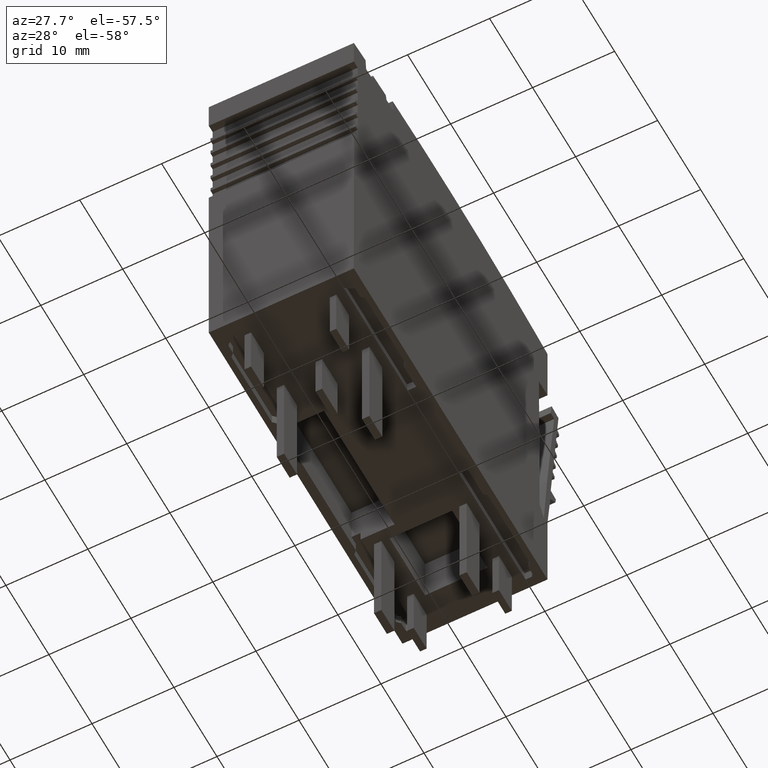
[diagram: clean part render]
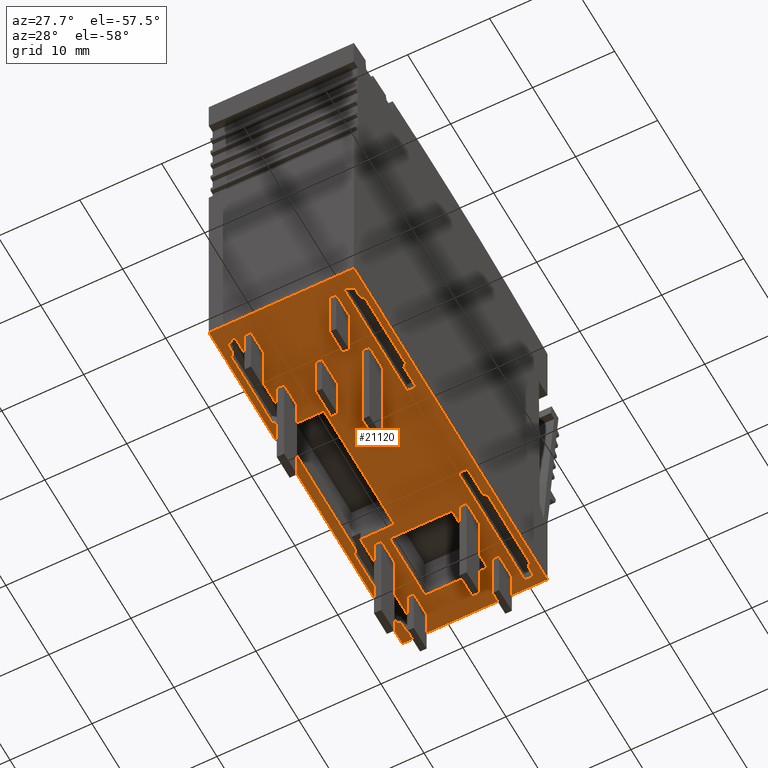
[diagram: same view with one face highlighted and labeled with its STEP entity id]
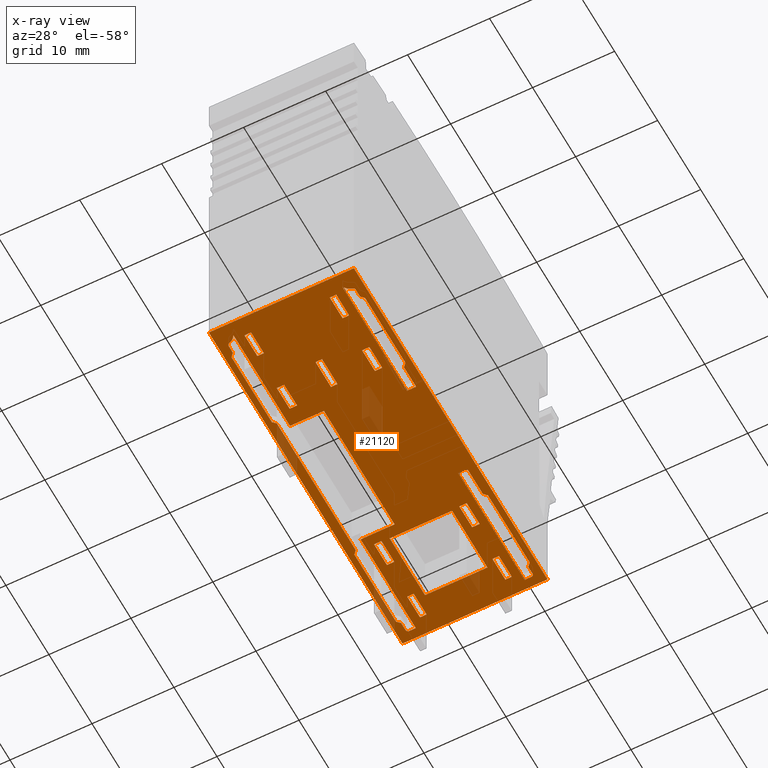
[diagram: x-ray of the same camera — body ghosted, the highlighted face saturated]
A machine part, auxiliary view. The second image highlights one B-rep face of the part: STEP entity #21120.
The next image is the same camera in x-ray: the body ghosted, the highlighted face saturated — about 4% of this face is hidden behind the body in this view.
In plain terms, the highlighted planar face has unit normal (0, -0, 1).
Its self-contained STEP definition (entity closure, byte-faithful):
#5840=CARTESIAN_POINT('',(166.676054836298,56.4590821833395,
6.5554859236643));
#5850=VERTEX_POINT('',#5840);
#5880=CARTESIAN_POINT('',(111.236365997237,56.4590821833395,
6.55548592610147));
#5890=DIRECTION('',(-1.,-1.71945223954659E-26,4.39608349722675E-11));
#5900=VECTOR('',#5890,1.);
#5910=LINE('',#5880,#5900);
#5920=CARTESIAN_POINT('',(121.676054887351,56.4590821833395,
6.55548592564253));
#5930=VERTEX_POINT('',#5920);
#5940=EDGE_CURVE('',#5850,#5930,#5910,.T.);
#14040=CARTESIAN_POINT('',(121.676054886573,56.4590821833395,
-11.144514076686));
#14050=VERTEX_POINT('',#14040);
#14080=CARTESIAN_POINT('',(111.236365997237,56.4590821833395,
-11.144514076686));
#14090=DIRECTION('',(1.,1.84143408459452E-26,-1.50463276905253E-36));
#14100=VECTOR('',#14090,1.);
#14110=LINE('',#14080,#14100);
#14120=CARTESIAN_POINT('',(166.67605483552,56.4590821833395,
-11.144514076686));
#14130=VERTEX_POINT('',#14120);
#14140=EDGE_CURVE('',#14050,#14130,#14110,.T.);
#14390=CARTESIAN_POINT('',(121.676055134106,56.4590821833395,
-4.29451407564581));
#14400=DIRECTION('',(4.39608349722675E-11,2.77478453548207E-17,1.));
#14410=VECTOR('',#14400,1.);
#14420=LINE('',#14390,#14410);
#14430=EDGE_CURVE('',#14050,#5930,#14420,.T.);
#14560=CARTESIAN_POINT('',(165.96306108922,56.4590821833395,
-3.388679999585));
#14570=DIRECTION('',(-1.84143408459452E-26,1.,-2.77478453548207E-17));
#14580=DIRECTION('',(1.,1.84143408459452E-26,-1.50463276905253E-36));
#14590=AXIS2_PLACEMENT_3D('',#14560,#14570,#14580);
#14600=PLANE('',#14590);
#14610=CARTESIAN_POINT('',(111.236365997237,56.4590821833322,
2.50548593117958));
#14620=DIRECTION('',(1.,3.70165795254377E-23,4.39608349722675E-11));
#14630=VECTOR('',#14620,1.);
#14640=LINE('',#14610,#14630);
#14650=CARTESIAN_POINT('',(161.576089848597,56.4590821833395,
2.50548593339255));
#14660=VERTEX_POINT('',#14650);
#14670=CARTESIAN_POINT('',(164.576089848597,56.4590821833395,
2.50548593352443));
#14680=VERTEX_POINT('',#14670);
#14690=EDGE_CURVE('',#14660,#14680,#14640,.T.);
#14700=ORIENTED_EDGE('',*,*,#14690,.F.);
#14710=CARTESIAN_POINT('',(164.576089848597,56.4590821833322,
-4.29451407564581));
#14720=DIRECTION('',(1.50463276905253E-36,2.77478453548207E-17,1.));
#14730=VECTOR('',#14720,1.);
#14740=LINE('',#14710,#14730);
#14750=CARTESIAN_POINT('',(164.576089848597,56.4590821833395,
3.3054859331771));
#14760=VERTEX_POINT('',#14750);
#14770=EDGE_CURVE('',#14680,#14760,#14740,.T.);
#14780=ORIENTED_EDGE('',*,*,#14770,.F.);
#14790=CARTESIAN_POINT('',(111.236365997237,56.4590821833322,
3.30548593134567));
#14800=DIRECTION('',(-1.,-3.70165795254377E-23,-4.39608349722675E-11));
#14810=VECTOR('',#14800,1.);
#14820=LINE('',#14790,#14810);
#14830=CARTESIAN_POINT('',(161.576089848597,56.4590821833395,
3.30548593355864));
#14840=VERTEX_POINT('',#14830);
#14850=EDGE_CURVE('',#14760,#14840,#14820,.T.);
#14860=ORIENTED_EDGE('',*,*,#14850,.F.);
#14870=CARTESIAN_POINT('',(161.576089848597,56.4590821833322,
-4.29451407564581));
#14880=DIRECTION('',(1.50463276905253E-36,2.77478453548207E-17,1.));
#14890=VECTOR('',#14880,1.);
#14900=LINE('',#14870,#14890);
#14910=EDGE_CURVE('',#14660,#14840,#14900,.T.);
#14920=ORIENTED_EDGE('',*,*,#14910,.T.);
#14930=EDGE_LOOP('',(#14920,#14860,#14780,#14700));
#14940=FACE_BOUND('',#14930,.T.);
#14950=CARTESIAN_POINT('',(111.236365997237,56.4590821833322,
-7.09451406775059));
#14960=DIRECTION('',(-1.,-3.70165795254377E-23,-4.39608349722675E-11));
#14970=VECTOR('',#14960,1.);
#14980=LINE('',#14950,#14970);
#14990=CARTESIAN_POINT('',(164.576089848535,56.4590821833395,
-7.09451406540574));
#15000=VERTEX_POINT('',#14990);
#15010=CARTESIAN_POINT('',(161.576089848535,56.4590821833395,
-7.09451406553762));
#15020=VERTEX_POINT('',#15010);
#15030=EDGE_CURVE('',#15000,#15020,#14980,.T.);
#15040=ORIENTED_EDGE('',*,*,#15030,.F.);
#15050=CARTESIAN_POINT('',(161.576089848535,56.4590821833322,
-4.29451407564581));
#15060=DIRECTION('',(1.50463276905253E-36,2.77478453548207E-17,1.));
#15070=VECTOR('',#15060,1.);
#15080=LINE('',#15050,#15070);
#15090=CARTESIAN_POINT('',(161.576089848535,56.4590821833395,
-7.89451406570371));
#15100=VERTEX_POINT('',#15090);
#15110=EDGE_CURVE('',#15100,#15020,#15080,.T.);
#15120=ORIENTED_EDGE('',*,*,#15110,.T.);
#15130=CARTESIAN_POINT('',(111.236365997237,56.4590821833322,
-7.89451406791668));
#15140=DIRECTION('',(1.,3.70165795254377E-23,4.39608349722675E-11));
#15150=VECTOR('',#15140,1.);
#15160=LINE('',#15130,#15150);
#15170=CARTESIAN_POINT('',(164.576089848535,56.4590821833395,
-7.89451406557183));
#15180=VERTEX_POINT('',#15170);
#15190=EDGE_CURVE('',#15100,#15180,#15160,.T.);
#15200=ORIENTED_EDGE('',*,*,#15190,.F.);
#15210=CARTESIAN_POINT('',(164.576089848535,56.4590821833322,
-4.29451407564581));
#15220=DIRECTION('',(1.50463276905253E-36,2.77478453548207E-17,1.));
#15230=VECTOR('',#15220,1.);
#15240=LINE('',#15210,#15230);
#15250=EDGE_CURVE('',#15180,#15000,#15240,.T.);
#15260=ORIENTED_EDGE('',*,*,#15250,.F.);
#15270=EDGE_LOOP('',(#15260,#15200,#15120,#15040));
#15280=FACE_BOUND('',#15270,.T.);
#15290=CARTESIAN_POINT('',(134.376201024909,56.4590821833395,
4.50548593001326));
#15300=DIRECTION('',(-1.50463276905253E-36,-2.77478453548207E-17,-1.));
#15310=VECTOR('',#15300,1.);
#15320=LINE('',#15290,#15310);
#15330=CARTESIAN_POINT('',(134.376201024909,56.4590821833395,
3.35548592914977));
#15340=VERTEX_POINT('',#15330);
#15350=CARTESIAN_POINT('',(134.376201024909,56.4590821833395,
2.45548592939735));
#15360=VERTEX_POINT('',#15350);
#15370=EDGE_CURVE('',#15340,#15360,#15320,.T.);
#15380=ORIENTED_EDGE('',*,*,#15370,.T.);
#15390=CARTESIAN_POINT('',(96.2363660492219,56.4590821833395,
3.35548592914977));
#15400=DIRECTION('',(1.,1.81672225352878E-26,-1.50463276905253E-36));
#15410=VECTOR('',#15400,1.);
#15420=LINE('',#15390,#15410);
#15430=CARTESIAN_POINT('',(131.375691708002,56.4590821833395,
3.35548592914977));
#15440=VERTEX_POINT('',#15430);
#15450=EDGE_CURVE('',#15440,#15340,#15420,.T.);
#15460=ORIENTED_EDGE('',*,*,#15450,.T.);
#15470=CARTESIAN_POINT('',(131.375691708002,56.4590821833395,
4.50548592988136));
#15480=DIRECTION('',(1.50463276905253E-36,2.77478453548207E-17,1.));
#15490=VECTOR('',#15480,1.);
#15500=LINE('',#15470,#15490);
#15510=CARTESIAN_POINT('',(131.375691708002,56.4590821833395,
2.45548592939735));
#15520=VERTEX_POINT('',#15510);
#15530=EDGE_CURVE('',#15520,#15440,#15500,.T.);
#15540=ORIENTED_EDGE('',*,*,#15530,.T.);
#15550=CARTESIAN_POINT('',(96.2363660492615,56.4590821833395,
2.45548592939735));
#15560=DIRECTION('',(-1.,-1.81672225352878E-26,1.50463276905253E-36));
#15570=VECTOR('',#15560,1.);
#15580=LINE('',#15550,#15570);
#15590=EDGE_CURVE('',#15360,#15520,#15580,.T.);
#15600=ORIENTED_EDGE('',*,*,#15590,.T.);
#15610=EDGE_LOOP('',(#15600,#15540,#15460,#15380));
#15620=FACE_BOUND('',#15610,.T.);
#15630=CARTESIAN_POINT('',(134.375691706241,56.4590821833395,
4.50548593001324));
#15640=DIRECTION('',(-1.50463276905253E-36,-2.77478453548207E-17,-1.));
#15650=VECTOR('',#15640,1.);
#15660=LINE('',#15630,#15650);
#15670=CARTESIAN_POINT('',(134.375691706241,56.4590821833395,
-7.04451406646506));
#15680=VERTEX_POINT('',#15670);
#15690=CARTESIAN_POINT('',(134.375691706241,56.4590821833395,
-7.94451406621747));
#15700=VERTEX_POINT('',#15690);
#15710=EDGE_CURVE('',#15680,#15700,#15660,.T.);
#15720=ORIENTED_EDGE('',*,*,#15710,.T.);
#15730=CARTESIAN_POINT('',(96.2363660496791,56.4590821833395,
-7.04451406646506));
#15740=DIRECTION('',(1.,1.81672225352878E-26,-1.50463276905253E-36));
#15750=VECTOR('',#15740,1.);
#15760=LINE('',#15730,#15750);
#15770=CARTESIAN_POINT('',(131.375691707998,56.4590821833395,
-7.04451406646507));
#15780=VERTEX_POINT('',#15770);
#15790=EDGE_CURVE('',#15780,#15680,#15760,.T.);
#15800=ORIENTED_EDGE('',*,*,#15790,.T.);
#15810=CARTESIAN_POINT('',(131.375691707998,56.4590821833395,
4.50548592988136));
#15820=DIRECTION('',(1.50463276905253E-36,2.77478453548207E-17,1.));
#15830=VECTOR('',#15820,1.);
#15840=LINE('',#15810,#15830);
#15850=CARTESIAN_POINT('',(131.375691707998,56.4590821833395,
-7.94451406621747));
#15860=VERTEX_POINT('',#15850);
#15870=EDGE_CURVE('',#15860,#15780,#15840,.T.);
#15880=ORIENTED_EDGE('',*,*,#15870,.T.);
#15890=CARTESIAN_POINT('',(96.2363660497187,56.4590821833395,
-7.94451406621747));
#15900=DIRECTION('',(-1.,-1.81672225352878E-26,1.50463276905253E-36));
#15910=VECTOR('',#15900,1.);
#15920=LINE('',#15890,#15910);
#15930=EDGE_CURVE('',#15700,#15860,#15920,.T.);
#15940=ORIENTED_EDGE('',*,*,#15930,.T.);
#15950=EDGE_LOOP('',(#15940,#15880,#15800,#15720));
#15960=FACE_BOUND('',#15950,.T.);
#15970=CARTESIAN_POINT('',(96.2363660492219,56.4590821833395,
3.35548592815622));
#15980=DIRECTION('',(1.,1.81672225352878E-26,-1.50463276905253E-36));
#15990=VECTOR('',#15980,1.);
#16000=LINE('',#15970,#15990);
#16010=CARTESIAN_POINT('',(153.976442649102,56.4590821833395,
3.35548592815622));
#16020=VERTEX_POINT('',#16010);
#16030=CARTESIAN_POINT('',(156.976442647798,56.4590821833395,
3.35548592815622));
#16040=VERTEX_POINT('',#16030);
#16050=EDGE_CURVE('',#16020,#16040,#16000,.T.);
#16060=ORIENTED_EDGE('',*,*,#16050,.T.);
#16070=CARTESIAN_POINT('',(153.976442649102,56.4590821833395,
4.50548593087491));
#16080=DIRECTION('',(1.50463276905253E-36,2.77478453548207E-17,1.));
#16090=VECTOR('',#16080,1.);
#16100=LINE('',#16070,#16090);
#16110=CARTESIAN_POINT('',(153.976442649102,56.4590821833395,
2.45548592840383));
#16120=VERTEX_POINT('',#16110);
#16130=EDGE_CURVE('',#16120,#16020,#16100,.T.);
#16140=ORIENTED_EDGE('',*,*,#16130,.T.);
#16150=CARTESIAN_POINT('',(96.2363660492615,56.4590821833395,
2.45548592840383));
#16160=DIRECTION('',(-1.,-1.81672225352878E-26,1.50463276905253E-36));
#16170=VECTOR('',#16160,1.);
#16180=LINE('',#16150,#16170);
#16190=CARTESIAN_POINT('',(156.976442647798,56.4590821833395,
2.45548592840383));
#16200=VERTEX_POINT('',#16190);
#16210=EDGE_CURVE('',#16200,#16120,#16180,.T.);
#16220=ORIENTED_EDGE('',*,*,#16210,.T.);
#16230=CARTESIAN_POINT('',(156.976442647798,56.4590821833395,
4.50548593100679));
#16240=DIRECTION('',(-1.50463276905253E-36,-2.77478453548207E-17,-1.));
#16250=VECTOR('',#16240,1.);
#16260=LINE('',#16230,#16250);
#16270=EDGE_CURVE('',#16040,#16200,#16260,.T.);
#16280=ORIENTED_EDGE('',*,*,#16270,.T.);
#16290=EDGE_LOOP('',(#16280,#16220,#16140,#16060));
#16300=FACE_BOUND('',#16290,.T.);
#16310=CARTESIAN_POINT('',(96.2363660496791,56.4590821833395,
-7.04451406745861));
#16320=DIRECTION('',(1.,1.81672225352878E-26,-1.50463276905253E-36));
#16330=VECTOR('',#16320,1.);
#16340=LINE('',#16310,#16330);
#16350=CARTESIAN_POINT('',(153.976442648636,56.4590821833395,
-7.04451406745861));
#16360=VERTEX_POINT('',#16350);
#16370=CARTESIAN_POINT('',(156.976442647341,56.4590821833395,
-7.04451406745861));
#16380=VERTEX_POINT('',#16370);
#16390=EDGE_CURVE('',#16360,#16380,#16340,.T.);
#16400=ORIENTED_EDGE('',*,*,#16390,.T.);
#16410=CARTESIAN_POINT('',(153.976442648636,56.4590821833395,
4.50548593087491));
#16420=DIRECTION('',(1.50463276905253E-36,2.77478453548207E-17,1.));
#16430=VECTOR('',#16420,1.);
#16440=LINE('',#16410,#16430);
#16450=CARTESIAN_POINT('',(153.976442648636,56.4590821833395,
-7.94451406721101));
#16460=VERTEX_POINT('',#16450);
#16470=EDGE_CURVE('',#16460,#16360,#16440,.T.);
#16480=ORIENTED_EDGE('',*,*,#16470,.T.);
#16490=CARTESIAN_POINT('',(96.2363660497187,56.4590821833395,
-7.94451406721101));
#16500=DIRECTION('',(-1.,-1.81672225352878E-26,1.50463276905253E-36));
#16510=VECTOR('',#16500,1.);
#16520=LINE('',#16490,#16510);
#16530=CARTESIAN_POINT('',(156.976442647341,56.4590821833395,
-7.94451406721101));
#16540=VERTEX_POINT('',#16530);
#16550=EDGE_CURVE('',#16540,#16460,#16520,.T.);
#16560=ORIENTED_EDGE('',*,*,#16550,.T.);
#16570=CARTESIAN_POINT('',(156.976442647341,56.4590821833395,
4.50548593100679));
#16580=DIRECTION('',(-1.50463276905253E-36,-2.77478453548207E-17,-1.));
#16590=VECTOR('',#16580,1.);
#16600=LINE('',#16570,#16590);
#16610=EDGE_CURVE('',#16380,#16540,#16600,.T.);
#16620=ORIENTED_EDGE('',*,*,#16610,.T.);
#16630=EDGE_LOOP('',(#16620,#16560,#16480,#16400));
#16640=FACE_BOUND('',#16630,.T.);
#16650=CARTESIAN_POINT('',(111.236365997237,56.4590821833395,
-6.09924445797375));
#16660=DIRECTION('',(1.,1.84143408459452E-26,-1.50463276905253E-36));
#16670=VECTOR('',#16660,1.);
#16680=LINE('',#16650,#16670);
#16690=CARTESIAN_POINT('',(126.044359175953,56.4590821833395,
-6.09924445797375));
#16700=VERTEX_POINT('',#16690);
#16710=CARTESIAN_POINT('',(134.253819951964,56.4590821833395,
-6.09924445797375));
#16720=VERTEX_POINT('',#16710);
#16730=EDGE_CURVE('',#16700,#16720,#16680,.T.);
#16740=ORIENTED_EDGE('',*,*,#16730,.F.);
#16750=CARTESIAN_POINT('',(134.253819951964,56.4590821833395,
-4.29451407564581));
#16760=DIRECTION('',(1.50463276905253E-36,2.77478453548207E-17,1.));
#16770=VECTOR('',#16760,1.);
#16780=LINE('',#16750,#16770);
#16790=CARTESIAN_POINT('',(134.253819951964,56.4590821833395,
1.5102163175957));
#16800=VERTEX_POINT('',#16790);
#16810=EDGE_CURVE('',#16720,#16800,#16780,.T.);
#16820=ORIENTED_EDGE('',*,*,#16810,.F.);
#16830=CARTESIAN_POINT('',(111.236365997237,56.4590821833395,
1.5102163175957));
#16840=DIRECTION('',(-1.,-1.84143408459452E-26,1.50463276905253E-36));
#16850=VECTOR('',#16840,1.);
#16860=LINE('',#16830,#16850);
#16870=CARTESIAN_POINT('',(126.044359175953,56.4590821833395,
1.5102163175957));
#16880=VERTEX_POINT('',#16870);
#16890=EDGE_CURVE('',#16800,#16880,#16860,.T.);
#16900=ORIENTED_EDGE('',*,*,#16890,.F.);
#16910=CARTESIAN_POINT('',(126.044359175953,56.4590821833395,
-4.29451407564581));
#16920=DIRECTION('',(-1.50463276905253E-36,-2.77478453548207E-17,-1.));
#16930=VECTOR('',#16920,1.);
#16940=LINE('',#16910,#16930);
#16950=EDGE_CURVE('',#16880,#16700,#16940,.T.);
#16960=ORIENTED_EDGE('',*,*,#16950,.F.);
#16970=EDGE_LOOP('',(#16960,#16900,#16820,#16740));
#16980=FACE_BOUND('',#16970,.T.);
#16990=CARTESIAN_POINT('',(111.236365997237,56.4590821833322,
-2.69451404888911));
#17000=DIRECTION('',(1.,3.70165795254377E-23,4.39608349722675E-11));
#17010=VECTOR('',#17000,1.);
#17020=LINE('',#16990,#17010);
#17030=CARTESIAN_POINT('',(154.376054932654,56.4590821833395,
-2.69451404699265));
#17040=VERTEX_POINT('',#17030);
#17050=CARTESIAN_POINT('',(157.976054932774,56.4590821833395,
-2.69451404683439));
#17060=VERTEX_POINT('',#17050);
#17070=EDGE_CURVE('',#17040,#17060,#17020,.T.);
#17080=ORIENTED_EDGE('',*,*,#17070,.F.);
#17090=CARTESIAN_POINT('',(157.976054932774,56.4590821833322,
-4.29451407564581));
#17100=DIRECTION('',(1.50463276905253E-36,2.77478453548207E-17,1.));
#17110=VECTOR('',#17100,1.);
#17120=LINE('',#17090,#17110);
#17130=CARTESIAN_POINT('',(157.976054932774,56.4590821833395,
-1.8945140466683));
#17140=VERTEX_POINT('',#17130);
#17150=EDGE_CURVE('',#17060,#17140,#17120,.T.);
#17160=ORIENTED_EDGE('',*,*,#17150,.F.);
#17170=CARTESIAN_POINT('',(111.236365997237,56.4590821833322,
-1.89451404872302));
#17180=DIRECTION('',(-1.,-3.70165795254377E-23,-4.39608349722675E-11));
#17190=VECTOR('',#17180,1.);
#17200=LINE('',#17170,#17190);
#17210=CARTESIAN_POINT('',(154.376054932654,56.4590821833395,
-1.89451404682656));
#17220=VERTEX_POINT('',#17210);
#17230=EDGE_CURVE('',#17140,#17220,#17200,.T.);
#17240=ORIENTED_EDGE('',*,*,#17230,.F.);
#17250=CARTESIAN_POINT('',(154.376054932654,56.4590821833322,
-4.29451407564581));
#17260=DIRECTION('',(1.50463276905253E-36,2.77478453548207E-17,1.));
#17270=VECTOR('',#17260,1.);
#17280=LINE('',#17250,#17270);
#17290=EDGE_CURVE('',#17040,#17220,#17280,.T.);
#17300=ORIENTED_EDGE('',*,*,#17290,.T.);
#17310=EDGE_LOOP('',(#17300,#17240,#17160,#17080));
#17320=FACE_BOUND('',#17310,.T.);
#17330=CARTESIAN_POINT('',(111.236365997237,56.4590821833322,
-7.89451406563886));
#17340=DIRECTION('',(1.,3.70165795254377E-23,4.39608349722675E-11));
#17350=VECTOR('',#17340,1.);
#17360=LINE('',#17330,#17350);
#17370=CARTESIAN_POINT('',(123.776089815191,56.4590821833395,
-7.8945140650876));
#17380=VERTEX_POINT('',#17370);
#17390=CARTESIAN_POINT('',(126.776089815191,56.4590821833395,
-7.89451406495572));
#17400=VERTEX_POINT('',#17390);
#17410=EDGE_CURVE('',#17380,#17400,#17360,.T.);
#17420=ORIENTED_EDGE('',*,*,#17410,.F.);
#17430=CARTESIAN_POINT('',(126.776089815191,56.4590821833322,
-4.29451407564581));
#17440=DIRECTION('',(1.50463276905253E-36,2.77478453548207E-17,1.));
#17450=VECTOR('',#17440,1.);
#17460=LINE('',#17430,#17450);
#17470=CARTESIAN_POINT('',(126.776089815191,56.4590821833395,
-7.09451406478963));
#17480=VERTEX_POINT('',#17470);
#17490=EDGE_CURVE('',#17400,#17480,#17460,.T.);
#17500=ORIENTED_EDGE('',*,*,#17490,.F.);
#17510=CARTESIAN_POINT('',(111.236365997237,56.4590821833322,
-7.09451406547277));
#17520=DIRECTION('',(-1.,-3.70165795254377E-23,-4.39608349722675E-11));
#17530=VECTOR('',#17520,1.);
#17540=LINE('',#17510,#17530);
#17550=CARTESIAN_POINT('',(123.776089815191,56.4590821833395,
-7.09451406492151));
#17560=VERTEX_POINT('',#17550);
#17570=EDGE_CURVE('',#17480,#17560,#17540,.T.);
#17580=ORIENTED_EDGE('',*,*,#17570,.F.);
#17590=CARTESIAN_POINT('',(123.776089815191,56.4590821833322,
-4.29451407564581));
#17600=DIRECTION('',(1.50463276905253E-36,2.77478453548207E-17,1.));
#17610=VECTOR('',#17600,1.);
#17620=LINE('',#17590,#17610);
#17630=EDGE_CURVE('',#17380,#17560,#17620,.T.);
#17640=ORIENTED_EDGE('',*,*,#17630,.T.);
#17650=EDGE_LOOP('',(#17640,#17580,#17500,#17420));
#17660=FACE_BOUND('',#17650,.T.);
#17670=CARTESIAN_POINT('',(144.349607344526,56.4590821833395,
-4.29451407564581));
#17680=DIRECTION('',(-0.707106781155467,1.96206896015509E-17,
0.707106781217628));
#17690=VECTOR('',#17680,1.);
#17700=LINE('',#17670,#17690);
#17710=CARTESIAN_POINT('',(134.599607343389,56.4590821833395,
5.45548592634752));
#17720=VERTEX_POINT('',#17710);
#17730=CARTESIAN_POINT('',(134.199607285093,56.4590821833395,
5.85548598467952));
#17740=VERTEX_POINT('',#17730);
#17750=EDGE_CURVE('',#17720,#17740,#17700,.T.);
#17760=ORIENTED_EDGE('',*,*,#17750,.F.);
#17770=CARTESIAN_POINT('',(111.236365997237,56.4590821833395,
5.855485985689));
#17780=DIRECTION('',(-1.,-1.71945239357807E-26,4.39607794611163E-11));
#17790=VECTOR('',#17780,1.);
#17800=LINE('',#17770,#17790);
#17810=CARTESIAN_POINT('',(124.476055034698,56.4590821833395,
5.85548598510697));
#17820=VERTEX_POINT('',#17810);
#17830=EDGE_CURVE('',#17740,#17820,#17800,.T.);
#17840=ORIENTED_EDGE('',*,*,#17830,.F.);
#17850=CARTESIAN_POINT('',(111.236365997237,56.4590821833395,
-7.3842030511894));
#17860=DIRECTION('',(-0.707106781217637,-1.96206896258676E-17,
-0.707106781155458));
#17870=VECTOR('',#17860,1.);
#17880=LINE('',#17850,#17870);
#17890=CARTESIAN_POINT('',(124.076054976366,56.4590821833395,
5.45548592681011));
#17900=VERTEX_POINT('',#17890);
#17910=EDGE_CURVE('',#17820,#17900,#17880,.T.);
#17920=ORIENTED_EDGE('',*,*,#17910,.F.);
#17930=CARTESIAN_POINT('',(111.236365997237,56.4590821833395,
5.45548592737457));
#17940=DIRECTION('',(-1.,-1.71944924542579E-26,4.39619140185016E-11));
#17950=VECTOR('',#17940,1.);
#17960=LINE('',#17930,#17950);
#17970=CARTESIAN_POINT('',(123.076054976788,56.4590821833395,
5.45548592685408));
#17980=VERTEX_POINT('',#17970);
#17990=EDGE_CURVE('',#17900,#17980,#17960,.T.);
#18000=ORIENTED_EDGE('',*,*,#17990,.F.);
#18010=CARTESIAN_POINT('',(123.076054976774,56.4590821833395,
5.15548592698057));
#18020=DIRECTION('',(-1.8414001015368E-26,1.,-2.77478453548207E-17));
#18030=DIRECTION('',(1.,1.71945239357807E-26,-4.39607794611163E-11));
#18040=AXIS2_PLACEMENT_3D('',#18010,#18020,#18030);
#18050=CIRCLE('',#18040,0.299999999873505);
#18060=CARTESIAN_POINT('',(122.776054976901,56.4590821833395,
5.15548592699376));
#18070=VERTEX_POINT('',#18060);
#18080=EDGE_CURVE('',#18070,#17980,#18050,.T.);
#18090=ORIENTED_EDGE('',*,*,#18080,.T.);
#18100=CARTESIAN_POINT('',(122.776054976485,56.4590821833395,
-4.29451407564581));
#18110=DIRECTION('',(-4.39607794611163E-11,-2.77478453548207E-17,-1.));
#18120=VECTOR('',#18110,1.);
#18130=LINE('',#18100,#18120);
#18140=CARTESIAN_POINT('',(122.776054976866,56.4590821833395,
4.35548592763446));
#18150=VERTEX_POINT('',#18140);
#18160=EDGE_CURVE('',#18070,#18150,#18130,.T.);
#18170=ORIENTED_EDGE('',*,*,#18160,.F.);
#18180=CARTESIAN_POINT('',(111.236365997237,56.4590821833395,
4.35548592814174));
#18190=DIRECTION('',(1.,1.7194544709216E-26,-4.39600308107254E-11));
#18200=VECTOR('',#18190,1.);
#18210=LINE('',#18180,#18200);
#18220=CARTESIAN_POINT('',(135.603098665924,56.4590821833395,
4.35548592707058));
#18230=VERTEX_POINT('',#18220);
#18240=EDGE_CURVE('',#18150,#18230,#18210,.T.);
#18250=ORIENTED_EDGE('',*,*,#18240,.F.);
#18260=CARTESIAN_POINT('',(135.603098665544,56.4590821833395,
-4.29451407564581));
#18270=DIRECTION('',(-4.39607794611163E-11,-2.77478453548207E-17,-1.));
#18280=VECTOR('',#18270,1.);
#18290=LINE('',#18260,#18280);
#18300=CARTESIAN_POINT('',(135.603098665742,56.4590821833395,
0.212346129965504));
#18310=VERTEX_POINT('',#18300);
#18320=EDGE_CURVE('',#18230,#18310,#18290,.T.);
#18330=ORIENTED_EDGE('',*,*,#18320,.F.);
#18340=CARTESIAN_POINT('',(111.236365997237,56.4590821833395,
0.212346131036684));
#18350=DIRECTION('',(1.,1.71945237837439E-26,-4.39607849403477E-11));
#18360=VECTOR('',#18350,1.);
#18370=LINE('',#18340,#18360);
#18380=CARTESIAN_POINT('',(152.00843366887,56.4590821833395,
0.212346129244312));
#18390=VERTEX_POINT('',#18380);
#18400=EDGE_CURVE('',#18310,#18390,#18370,.T.);
#18410=ORIENTED_EDGE('',*,*,#18400,.F.);
#18420=CARTESIAN_POINT('',(152.008433668672,56.4590821833395,
-4.29451407564581));
#18430=DIRECTION('',(4.39607794611163E-11,2.77478453548207E-17,1.));
#18440=VECTOR('',#18430,1.);
#18450=LINE('',#18420,#18440);
#18460=CARTESIAN_POINT('',(152.008433669052,56.4590821833395,
4.3554859263494));
#18470=VERTEX_POINT('',#18460);
#18480=EDGE_CURVE('',#18390,#18470,#18450,.T.);
#18490=ORIENTED_EDGE('',*,*,#18480,.F.);
#18500=CARTESIAN_POINT('',(111.236365997237,56.4590821833395,
4.35548592814174));
#18510=DIRECTION('',(1.,1.7194544709216E-26,-4.39600308107254E-11));
#18520=VECTOR('',#18510,1.);
#18530=LINE('',#18500,#18520);
#18540=CARTESIAN_POINT('',(165.152221552225,56.4590821833395,
4.3554859257716));
#18550=VERTEX_POINT('',#18540);
#18560=EDGE_CURVE('',#18470,#18550,#18530,.T.);
#18570=ORIENTED_EDGE('',*,*,#18560,.F.);
#18580=CARTESIAN_POINT('',(165.849089549138,56.4590821833395,
5.65548592309646));
#18590=DIRECTION('',(-1.8414001015368E-26,1.,-2.77478453548207E-17));
#18600=DIRECTION('',(4.39607794611163E-11,2.77478453548207E-17,1.));
#18610=AXIS2_PLACEMENT_3D('',#18580,#18590,#18600);
#18620=CIRCLE('',#18610,1.47499999937807);
#18630=CARTESIAN_POINT('',(164.433819044371,56.4590821833395,
5.23999296707731));
#18640=VERTEX_POINT('',#18630);
#18650=EDGE_CURVE('',#18550,#18640,#18620,.T.);
#18660=ORIENTED_EDGE('',*,*,#18650,.F.);
#18670=CARTESIAN_POINT('',(164.145967416282,56.4590821833395,
5.15548592517511));
#18680=DIRECTION('',(-1.8414001015368E-26,1.,-2.77478453548207E-17));
#18690=DIRECTION('',(1.,1.71945239357807E-26,-4.39607794611163E-11));
#18700=AXIS2_PLACEMENT_3D('',#18670,#18680,#18690);
#18710=CIRCLE('',#18700,0.299999999873505);
#18720=CARTESIAN_POINT('',(164.145967416296,56.4590821833395,
5.4554859250486));
#18730=VERTEX_POINT('',#18720);
#18740=EDGE_CURVE('',#18730,#18640,#18710,.T.);
#18750=ORIENTED_EDGE('',*,*,#18740,.T.);
#18760=CARTESIAN_POINT('',(111.236365997237,56.4590821833395,
5.45548592737461));
#18770=DIRECTION('',(-1.,-1.71944924542579E-26,4.39619140185016E-11));
#18780=VECTOR('',#18770,1.);
#18790=LINE('',#18760,#18780);
#18800=CARTESIAN_POINT('',(163.145967416715,56.4590821833395,
5.45548592509256));
#18810=VERTEX_POINT('',#18800);
#18820=EDGE_CURVE('',#18730,#18810,#18790,.T.);
#18830=ORIENTED_EDGE('',*,*,#18820,.F.);
#18840=CARTESIAN_POINT('',(172.895967416596,56.4590821833395,
-4.29451407564581));
#18850=DIRECTION('',(-0.707106781155467,1.96206896015509E-17,
0.707106781217628));
#18860=VECTOR('',#18850,1.);
#18870=LINE('',#18840,#18860);
#18880=CARTESIAN_POINT('',(162.745967416901,56.4590821833395,
5.85548592494154));
#18890=VERTEX_POINT('',#18880);
#18900=EDGE_CURVE('',#18810,#18890,#18870,.T.);
#18910=ORIENTED_EDGE('',*,*,#18900,.F.);
#18920=CARTESIAN_POINT('',(111.236365997237,56.4590821833395,
5.85548592720594));
#18930=DIRECTION('',(-1.,-1.71945239357807E-26,4.39607794611163E-11));
#18940=VECTOR('',#18930,1.);
#18950=LINE('',#18920,#18940);
#18960=CARTESIAN_POINT('',(153.351243105645,56.4590821833395,
5.85548592535454));
#18970=VERTEX_POINT('',#18960);
#18980=EDGE_CURVE('',#18890,#18970,#18950,.T.);
#18990=ORIENTED_EDGE('',*,*,#18980,.F.);
#19000=CARTESIAN_POINT('',(111.236365997237,56.4590821833395,
-36.2593911793501));
#19010=DIRECTION('',(-0.707106781217637,-1.96206896258676E-17,
-0.707106781155458));
#19020=VECTOR('',#19010,1.);
#19030=LINE('',#19000,#19020);
#19040=CARTESIAN_POINT('',(152.951243105796,56.4590821833395,
5.45548592554074));
#19050=VERTEX_POINT('',#19040);
#19060=EDGE_CURVE('',#18970,#19050,#19030,.T.);
#19070=ORIENTED_EDGE('',*,*,#19060,.F.);
#19080=CARTESIAN_POINT('',(111.236365997237,56.4590821833395,
5.45548592737461));
#19090=DIRECTION('',(-1.,-1.71944924542579E-26,4.39619140185016E-11));
#19100=VECTOR('',#19090,1.);
#19110=LINE('',#19080,#19100);
#19120=EDGE_CURVE('',#19050,#17720,#19110,.T.);
#19130=ORIENTED_EDGE('',*,*,#19120,.F.);
#19140=EDGE_LOOP('',(#19130,#19070,#18990,#18910,#18830,#18750,#18660,
#18570,#18490,#18410,#18330,#18250,#18170,#18090,#18000,#17920,#17840,
#17760));
#19150=FACE_BOUND('',#19140,.T.);
#19160=CARTESIAN_POINT('',(111.236365997237,56.4590821833395,
-10.0445140660982));
#19170=DIRECTION('',(1.,1.72030372559005E-26,-4.36539693282612E-11));
#19180=VECTOR('',#19170,1.);
#19190=LINE('',#19160,#19180);
#19200=CARTESIAN_POINT('',(150.126054637989,56.4590821833395,
-10.0445140677959));
#19210=VERTEX_POINT('',#19200);
#19220=CARTESIAN_POINT('',(152.951203194005,56.4590821833395,
-10.0445140679192));
#19230=VERTEX_POINT('',#19220);
#19240=EDGE_CURVE('',#19210,#19230,#19190,.T.);
#19250=ORIENTED_EDGE('',*,*,#19240,.F.);
#19260=CARTESIAN_POINT('',(147.201203202238,56.4590821833395,
-4.29451407564581));
#19270=DIRECTION('',(0.707106781155467,-1.96206896015509E-17,
-0.707106781217628));
#19280=VECTOR('',#19270,1.);
#19290=LINE('',#19260,#19280);
#19300=CARTESIAN_POINT('',(153.351203193824,56.4590821833395,
-10.4445140677725));
#19310=VERTEX_POINT('',#19300);
#19320=EDGE_CURVE('',#19230,#19310,#19290,.T.);
#19330=ORIENTED_EDGE('',*,*,#19320,.F.);
#19340=CARTESIAN_POINT('',(111.236365997237,56.4590821833395,
-10.4445140659211));
#19350=DIRECTION('',(1.,1.71945239357807E-26,-4.39607794611163E-11));
#19360=VECTOR('',#19350,1.);
#19370=LINE('',#19340,#19360);
#19380=CARTESIAN_POINT('',(162.745967416184,56.4590821833395,
-10.4445140681855));
#19390=VERTEX_POINT('',#19380);
#19400=EDGE_CURVE('',#19310,#19390,#19370,.T.);
#19410=ORIENTED_EDGE('',*,*,#19400,.F.);
#19420=CARTESIAN_POINT('',(111.236365997237,56.4590821833395,
-61.954115482603));
#19430=DIRECTION('',(0.707106781217637,1.96206896258676E-17,
0.707106781155458));
#19440=VECTOR('',#19430,1.);
#19450=LINE('',#19420,#19440);
#19460=CARTESIAN_POINT('',(163.145967416033,56.4590821833395,
-10.0445140683721));
#19470=VERTEX_POINT('',#19460);
#19480=EDGE_CURVE('',#19390,#19470,#19450,.T.);
#19490=ORIENTED_EDGE('',*,*,#19480,.F.);
#19500=CARTESIAN_POINT('',(111.236365997237,56.4590821833395,
-10.0445140661061));
#19510=DIRECTION('',(1.,1.72030372559005E-26,-4.36539693282612E-11));
#19520=VECTOR('',#19510,1.);
#19530=LINE('',#19500,#19520);
#19540=CARTESIAN_POINT('',(164.145967415611,56.4590821833395,
-10.0445140684158));
#19550=VERTEX_POINT('',#19540);
#19560=EDGE_CURVE('',#19470,#19550,#19530,.T.);
#19570=ORIENTED_EDGE('',*,*,#19560,.F.);
#19580=CARTESIAN_POINT('',(164.145967415625,56.4590821833395,
-9.74451406854231));
#19590=DIRECTION('',(-1.8414001015368E-26,1.,-2.77478453548207E-17));
#19600=DIRECTION('',(1.,1.71945239357807E-26,-4.39607794611163E-11));
#19610=AXIS2_PLACEMENT_3D('',#19580,#19590,#19600);
#19620=CIRCLE('',#19610,0.299999999873505);
#19630=CARTESIAN_POINT('',(164.433819043706,56.4590821833395,
-9.8290211104682));
#19640=VERTEX_POINT('',#19630);
#19650=EDGE_CURVE('',#19640,#19550,#19620,.T.);
#19660=ORIENTED_EDGE('',*,*,#19650,.T.);
#19670=CARTESIAN_POINT('',(165.849089548439,56.4590821833395,
-10.2445140666038));
#19680=DIRECTION('',(-1.8414001015368E-26,1.,-2.77478453548207E-17));
#19690=DIRECTION('',(1.,1.71945239357807E-26,-4.39607794611163E-11));
#19700=AXIS2_PLACEMENT_3D('',#19670,#19680,#19690);
#19710=CIRCLE('',#19700,1.47499999937807);
#19720=CARTESIAN_POINT('',(165.152477623035,56.4590821833395,
-8.94437683401986));
#19730=VERTEX_POINT('',#19720);
#19740=EDGE_CURVE('',#19640,#19730,#19710,.T.);
#19750=ORIENTED_EDGE('',*,*,#19740,.F.);
#19760=CARTESIAN_POINT('',(111.236365997237,56.4590821833395,
-8.94437683164965));
#19770=DIRECTION('',(-1.,-1.71945242970651E-26,4.39607664408501E-11));
#19780=VECTOR('',#19770,1.);
#19790=LINE('',#19760,#19780);
#19800=CARTESIAN_POINT('',(150.126054638037,56.4590821833395,
-8.94437683335927));
#19810=VERTEX_POINT('',#19800);
#19820=EDGE_CURVE('',#19730,#19810,#19790,.T.);
#19830=ORIENTED_EDGE('',*,*,#19820,.F.);
#19840=CARTESIAN_POINT('',(150.126054638242,56.4590821833395,
-4.29451407564581));
#19850=DIRECTION('',(-4.39607794611163E-11,-2.77478453548207E-17,-1.));
#19860=VECTOR('',#19850,1.);
#19870=LINE('',#19840,#19860);
#19880=EDGE_CURVE('',#19810,#19210,#19870,.T.);
#19890=ORIENTED_EDGE('',*,*,#19880,.F.);
#19900=EDGE_LOOP('',(#19890,#19830,#19750,#19660,#19570,#19490,#19410,
#19330,#19250));
#19910=FACE_BOUND('',#19900,.T.);
#19920=CARTESIAN_POINT('',(123.076054976759,56.4590821833395,
-9.74451406673684));
#19930=DIRECTION('',(-1.8414001015368E-26,1.,-2.77478453548207E-17));
#19940=DIRECTION('',(1.,1.71945239357807E-26,-4.39607794611163E-11));
#19950=AXIS2_PLACEMENT_3D('',#19920,#19930,#19940);
#19960=CIRCLE('',#19950,0.299999999873505);
#19970=CARTESIAN_POINT('',(123.076054976746,56.4590821833395,
-10.044514066615));
#19980=VERTEX_POINT('',#19970);
#19990=CARTESIAN_POINT('',(122.776054976886,56.4590821833395,
-9.74451406672365));
#20000=VERTEX_POINT('',#19990);
#20010=EDGE_CURVE('',#19980,#20000,#19960,.T.);
#20020=ORIENTED_EDGE('',*,*,#20010,.T.);
#20030=CARTESIAN_POINT('',(111.236365997237,56.4590821833395,
-10.0445140660982));
#20040=DIRECTION('',(1.,1.72030372559005E-26,-4.36539693282612E-11));
#20050=VECTOR('',#20040,1.);
#20060=LINE('',#20030,#20050);
#20070=CARTESIAN_POINT('',(124.076054976329,56.4590821833395,
-10.0445140666587));
#20080=VERTEX_POINT('',#20070);
#20090=EDGE_CURVE('',#19980,#20080,#20060,.T.);
#20100=ORIENTED_EDGE('',*,*,#20090,.F.);
#20110=CARTESIAN_POINT('',(118.326054985821,56.4590821833395,
-4.29451407564581));
#20120=DIRECTION('',(0.707106781155467,-1.96206896015509E-17,
-0.707106781217628));
#20130=VECTOR('',#20120,1.);
#20140=LINE('',#20110,#20130);
#20150=CARTESIAN_POINT('',(124.476054976138,56.4590821833395,
-10.4445140665032));
#20160=VERTEX_POINT('',#20150);
#20170=EDGE_CURVE('',#20080,#20160,#20140,.T.);
#20180=ORIENTED_EDGE('',*,*,#20170,.F.);
#20190=CARTESIAN_POINT('',(111.236365997237,56.4590821833395,
-10.4445140659212));
#20200=DIRECTION('',(1.,1.71945239357807E-26,-4.39607794611163E-11));
#20210=VECTOR('',#20200,1.);
#20220=LINE('',#20190,#20210);
#20230=CARTESIAN_POINT('',(134.199606056033,56.4590821833395,
-10.4445140669307));
#20240=VERTEX_POINT('',#20230);
#20250=EDGE_CURVE('',#20160,#20240,#20220,.T.);
#20260=ORIENTED_EDGE('',*,*,#20250,.F.);
#20270=CARTESIAN_POINT('',(111.236365997237,56.4590821833395,
-33.4077541237072));
#20280=DIRECTION('',(0.707106781217637,1.96206896258676E-17,
0.707106781155458));
#20290=VECTOR('',#20280,1.);
#20300=LINE('',#20270,#20290);
#20310=CARTESIAN_POINT('',(134.599606055881,56.4590821833395,
-10.044514067118));
#20320=VERTEX_POINT('',#20310);
#20330=EDGE_CURVE('',#20240,#20320,#20300,.T.);
#20340=ORIENTED_EDGE('',*,*,#20330,.F.);
#20350=CARTESIAN_POINT('',(111.236365997237,56.4590821833395,
-10.0445140660981));
#20360=DIRECTION('',(1.,1.72030372559005E-26,-4.36539693282612E-11));
#20370=VECTOR('',#20360,1.);
#20380=LINE('',#20350,#20370);
#20390=CARTESIAN_POINT('',(138.226054611565,56.4590821833395,
-10.0445140672763));
#20400=VERTEX_POINT('',#20390);
#20410=EDGE_CURVE('',#20320,#20400,#20380,.T.);
#20420=ORIENTED_EDGE('',*,*,#20410,.F.);
#20430=CARTESIAN_POINT('',(138.226054611817,56.4590821833395,
-4.29451407564581));
#20440=DIRECTION('',(4.39607794611163E-11,2.77478453548207E-17,1.));
#20450=VECTOR('',#20440,1.);
#20460=LINE('',#20430,#20450);
#20470=CARTESIAN_POINT('',(138.226054611613,56.4590821833395,
-8.94437683283614));
#20480=VERTEX_POINT('',#20470);
#20490=EDGE_CURVE('',#20400,#20480,#20460,.T.);
#20500=ORIENTED_EDGE('',*,*,#20490,.F.);
#20510=CARTESIAN_POINT('',(111.236365997237,56.4590821833395,
-8.94437683164965));
#20520=DIRECTION('',(-1.,-1.71945239357807E-26,4.39607794611163E-11));
#20530=VECTOR('',#20520,1.);
#20540=LINE('',#20510,#20530);
#20550=CARTESIAN_POINT('',(122.776054976921,56.4590821833395,
-8.94437683215695));
#20560=VERTEX_POINT('',#20550);
#20570=EDGE_CURVE('',#20480,#20560,#20540,.T.);
#20580=ORIENTED_EDGE('',*,*,#20570,.F.);
#20590=CARTESIAN_POINT('',(122.776054977125,56.4590821833395,
-4.29451407564581));
#20600=DIRECTION('',(-4.39607794611163E-11,-2.77478453548207E-17,-1.));
#20610=VECTOR('',#20600,1.);
#20620=LINE('',#20590,#20610);
#20630=EDGE_CURVE('',#20560,#20000,#20620,.T.);
#20640=ORIENTED_EDGE('',*,*,#20630,.F.);
#20650=EDGE_LOOP('',(#20640,#20580,#20500,#20420,#20340,#20260,#20180,
#20100,#20020));
#20660=FACE_BOUND('',#20650,.T.);
#20670=CARTESIAN_POINT('',(111.236365997237,56.4590821833322,
2.50548593166667));
#20680=DIRECTION('',(1.,3.70165795254377E-23,4.39608349722675E-11));
#20690=VECTOR('',#20680,1.);
#20700=LINE('',#20670,#20690);
#20710=CARTESIAN_POINT('',(123.776089815226,56.4590821833395,
2.50548593221793));
#20720=VERTEX_POINT('',#20710);
#20730=CARTESIAN_POINT('',(126.776089815226,56.4590821833395,
2.50548593234981));
#20740=VERTEX_POINT('',#20730);
#20750=EDGE_CURVE('',#20720,#20740,#20700,.T.);
#20760=ORIENTED_EDGE('',*,*,#20750,.F.);
#20770=CARTESIAN_POINT('',(126.776089815226,56.4590821833322,
-4.29451407564581));
#20780=DIRECTION('',(1.50463276905253E-36,2.77478453548207E-17,1.));
#20790=VECTOR('',#20780,1.);
#20800=LINE('',#20770,#20790);
#20810=CARTESIAN_POINT('',(126.776089815226,56.4590821833395,
3.3054859325159));
#20820=VERTEX_POINT('',#20810);
#20830=EDGE_CURVE('',#20740,#20820,#20800,.T.);
#20840=ORIENTED_EDGE('',*,*,#20830,.F.);
#20850=CARTESIAN_POINT('',(111.236365997237,56.4590821833322,
3.30548593183276));
#20860=DIRECTION('',(-1.,-3.70165795254377E-23,-4.39608349722675E-11));
#20870=VECTOR('',#20860,1.);
#20880=LINE('',#20850,#20870);
#20890=CARTESIAN_POINT('',(123.776089815226,56.4590821833395,
3.30548593238402));
#20900=VERTEX_POINT('',#20890);
#20910=EDGE_CURVE('',#20820,#20900,#20880,.T.);
#20920=ORIENTED_EDGE('',*,*,#20910,.F.);
#20930=CARTESIAN_POINT('',(123.776089815226,56.4590821833322,
-4.29451407564581));
#20940=DIRECTION('',(1.50463276905253E-36,2.77478453548207E-17,1.));
#20950=VECTOR('',#20940,1.);
#20960=LINE('',#20930,#20950);
#20970=EDGE_CURVE('',#20720,#20900,#20960,.T.);
#20980=ORIENTED_EDGE('',*,*,#20970,.T.);
#20990=EDGE_LOOP('',(#20980,#20920,#20840,#20760));
#21000=FACE_BOUND('',#20990,.T.);
#21010=ORIENTED_EDGE('',*,*,#5940,.T.);
#21020=CARTESIAN_POINT('',(166.676054835821,56.4590821833395,
-4.29451407564581));
#21030=DIRECTION('',(4.39608349722675E-11,2.77478453548207E-17,1.));
#21040=VECTOR('',#21030,1.);
#21050=LINE('',#21020,#21040);
#21060=EDGE_CURVE('',#14130,#5850,#21050,.T.);
#21070=ORIENTED_EDGE('',*,*,#21060,.T.);
#21080=ORIENTED_EDGE('',*,*,#14140,.T.);
#21090=ORIENTED_EDGE('',*,*,#14430,.F.);
#21100=EDGE_LOOP('',(#21090,#21080,#21070,#21010));
#21110=FACE_OUTER_BOUND('',#21100,.T.);
#21120=ADVANCED_FACE('',(#14940,#15280,#15620,#15960,#16300,#16640,
#16980,#17320,#17660,#19150,#19910,#20660,#21000,#21110),#14600,.F.);